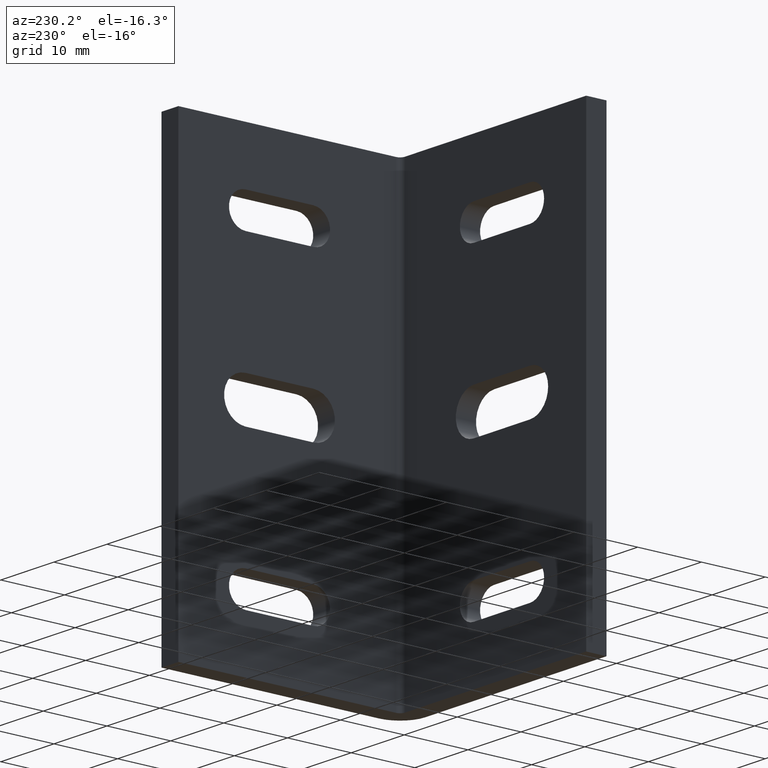
[diagram: clean part render]
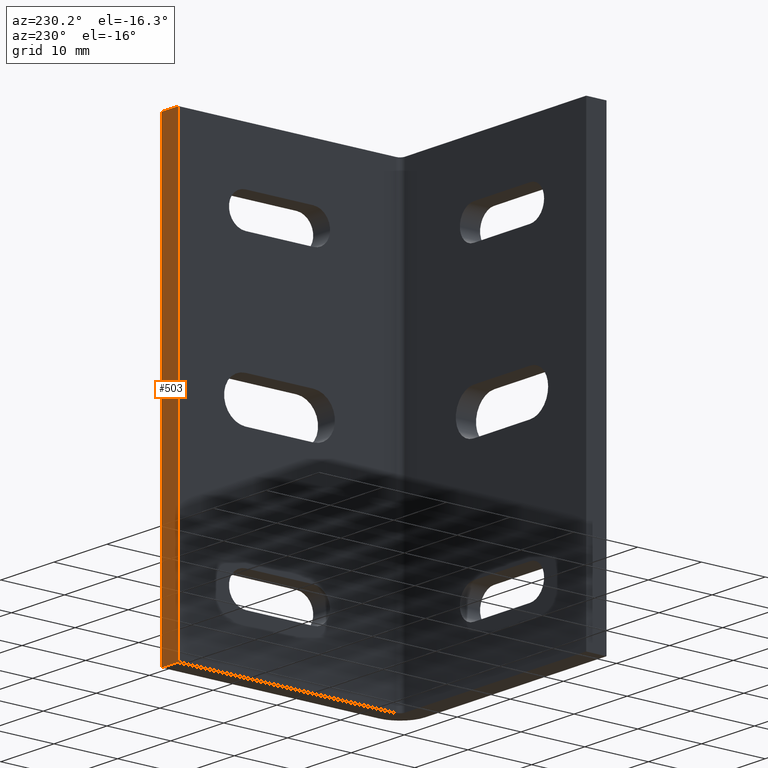
[diagram: same view with one face highlighted and labeled with its STEP entity id]
A machine part, auxiliary view. The second image highlights one B-rep face of the part: STEP entity #503.
In plain terms, the highlighted planar face has unit normal (0, -1, 0).
Its self-contained STEP definition (entity closure, byte-faithful):
#62 = ORIENTED_EDGE ( 'NONE', *, *, #1234, .F. ) ;
#84 = ORIENTED_EDGE ( 'NONE', *, *, #568, .F. ) ;
#126 = VERTEX_POINT ( 'NONE', #955 ) ;
#167 = ORIENTED_EDGE ( 'NONE', *, *, #586, .T. ) ;
#169 = ORIENTED_EDGE ( 'NONE', *, *, #576, .T. ) ;
#294 = VECTOR ( 'NONE', #937, 39.37007874015748100 ) ;
#307 = LINE ( 'NONE', #946, #308 ) ;
#308 = VECTOR ( 'NONE', #935, 39.37007874015748100 ) ;
#322 = LINE ( 'NONE', #773, #324 ) ;
#324 = VECTOR ( 'NONE', #729, 39.37007874015748100 ) ;
#378 = VECTOR ( 'NONE', #684, 39.37007874015748100 ) ;
#382 = LINE ( 'NONE', #686, #378 ) ;
#503 = ADVANCED_FACE ( 'NONE', ( #890 ), #1127, .F. ) ;
#509 = EDGE_LOOP ( 'NONE', ( #167, #169, #84, #62 ) ) ;
#568 = EDGE_CURVE ( 'NONE', #1212, #1219, #1371, .T. ) ;
#576 = EDGE_CURVE ( 'NONE', #126, #1219, #307, .T. ) ;
#586 = EDGE_CURVE ( 'NONE', #1216, #126, #322, .T. ) ;
#684 = DIRECTION ( 'NONE',  ( -0.0000000000000000000, 0.0000000000000000000, -1.000000000000000000 ) ) ;
#686 = CARTESIAN_POINT ( 'NONE',  ( -0.1249999999999999600, 1.500000000000000200, 1.375000000000000000 ) ) ;
#723 = CARTESIAN_POINT ( 'NONE',  ( 2.408933263771123000E-017, 1.500000000000000200, -1.375000000000000000 ) ) ;
#724 = CARTESIAN_POINT ( 'NONE',  ( -0.1249999999999999600, 1.500000000000000200, 1.375000000000000000 ) ) ;
#727 = CARTESIAN_POINT ( 'NONE',  ( -0.1250000000000025000, 1.499999999999999800, -1.375000000000000000 ) ) ;
#729 = DIRECTION ( 'NONE',  ( 1.000000000000000000, 1.232595164407831200E-032, 0.0000000000000000000 ) ) ;
#773 = CARTESIAN_POINT ( 'NONE',  ( -6.248468298276721500, 1.499999999999999800, 1.375000000000000000 ) ) ;
#890 = FACE_OUTER_BOUND ( 'NONE', #509, .T. ) ;
#935 = DIRECTION ( 'NONE',  ( -0.0000000000000000000, 0.0000000000000000000, -1.000000000000000000 ) ) ;
#937 = DIRECTION ( 'NONE',  ( 1.000000000000000000, 1.232595164407831200E-032, 0.0000000000000000000 ) ) ;
#940 = CARTESIAN_POINT ( 'NONE',  ( -6.248468298276721500, 1.499999999999999800, -1.375000000000000000 ) ) ;
#946 = CARTESIAN_POINT ( 'NONE',  ( 2.408933263771123000E-017, 1.500000000000000200, 1.375000000000000000 ) ) ;
#955 = CARTESIAN_POINT ( 'NONE',  ( -2.069540552357648100E-015, 1.499999999999999800, 1.375000000000000000 ) ) ;
#1119 = DIRECTION ( 'NONE',  ( 1.000000000000000000, 1.232595164407830900E-032, 0.0000000000000000000 ) ) ;
#1120 = DIRECTION ( 'NONE',  ( 1.232595164407830900E-032, -1.000000000000000000, 0.0000000000000000000 ) ) ;
#1127 = PLANE ( 'NONE',  #1273 ) ;
#1131 = CARTESIAN_POINT ( 'NONE',  ( -6.248468298276721500, 1.499999999999999800, 1.375000000000000000 ) ) ;
#1212 = VERTEX_POINT ( 'NONE', #727 ) ;
#1216 = VERTEX_POINT ( 'NONE', #724 ) ;
#1219 = VERTEX_POINT ( 'NONE', #723 ) ;
#1234 = EDGE_CURVE ( 'NONE', #1216, #1212, #382, .T. ) ;
#1273 = AXIS2_PLACEMENT_3D ( 'NONE', #1131, #1120, #1119 ) ;
#1371 = LINE ( 'NONE', #940, #294 ) ;